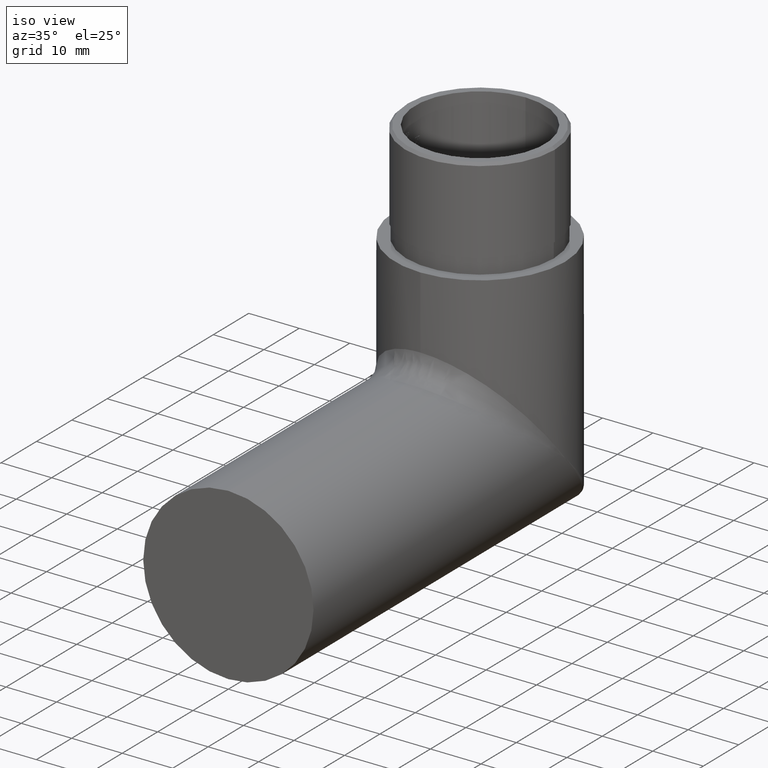
[diagram: clean part render]
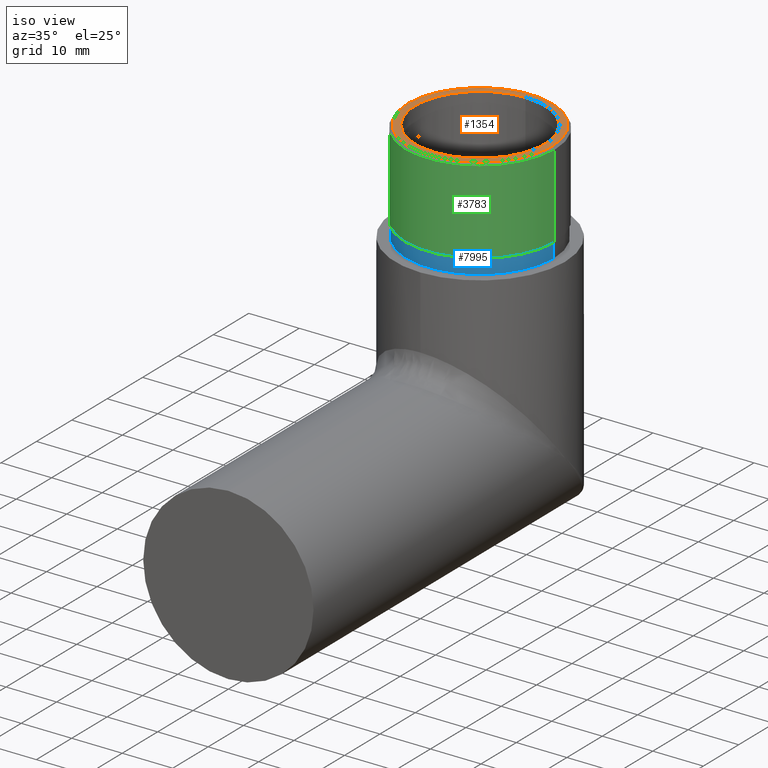
[diagram: same view with three faces highlighted in distinct colors, each labeled with its STEP entity id]
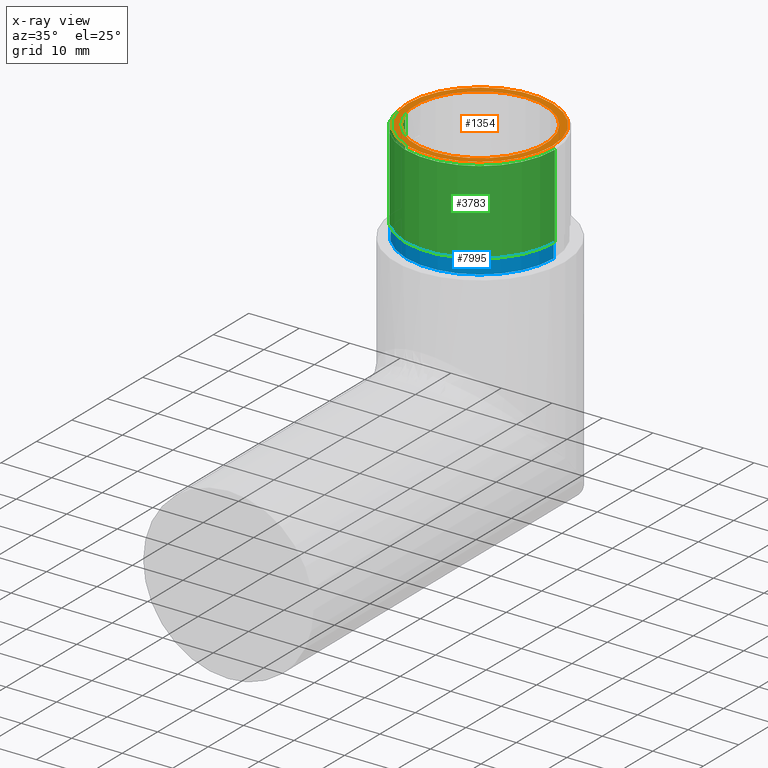
[diagram: x-ray of the same camera — body ghosted, the three highlighted faces saturated]
A machine part, iso view with three faces highlighted in distinct colors.
The next image is the same camera in x-ray (body ghosted, the three faces saturated) — at least one of them is partly hidden behind the body in this view.
Their STEP definitions:

[orange] entity #1354 — the highlighted planar face has unit normal (0, 0, 1).
#165 = CIRCLE ( 'NONE', #3776, 14.30000000000000782 ) ;
#261 = DIRECTION ( 'NONE',  ( 0.000000000000000000, 0.000000000000000000, 1.000000000000000000 ) ) ;
#809 = CARTESIAN_POINT ( 'NONE',  ( 0.000000000000000000, 71.15000000000000568, 55.15000000000002700 ) ) ;
#962 = AXIS2_PLACEMENT_3D ( 'NONE', #809, #6877, #6670 ) ;
#1278 = CARTESIAN_POINT ( 'NONE',  ( 0.000000000000000000, 58.30000000000001137, 55.15000000000002700 ) ) ;
#1354 = ADVANCED_FACE ( 'NONE', ( #12786, #5587 ), #4579, .T. ) ;
#1724 = EDGE_LOOP ( 'NONE', ( #2799, #12719 ) ) ;
#2519 = DIRECTION ( 'NONE',  ( 0.000000000000000000, 0.000000000000000000, 1.000000000000000000 ) ) ;
#2710 = CARTESIAN_POINT ( 'NONE',  ( 1.573671136904349651E-15, 83.99999999999998579, 55.15000000000002700 ) ) ;
#2799 = ORIENTED_EDGE ( 'NONE', *, *, #7015, .T. ) ;
#3461 = EDGE_CURVE ( 'NONE', #6031, #10194, #9470, .T. ) ;
#3776 = AXIS2_PLACEMENT_3D ( 'NONE', #15179, #7941, #10262 ) ;
#4579 = PLANE ( 'NONE',  #14190 ) ;
#4726 = CARTESIAN_POINT ( 'NONE',  ( 14.30000000000000782, 71.15000000000000568, 55.15000000000002700 ) ) ;
#5053 = ORIENTED_EDGE ( 'NONE', *, *, #5716, .F. ) ;
#5587 = FACE_BOUND ( 'NONE', #7394, .T. ) ;
#5716 = EDGE_CURVE ( 'NONE', #10194, #6031, #15503, .T. ) ;
#6031 = VERTEX_POINT ( 'NONE', #1278 ) ;
#6338 = CARTESIAN_POINT ( 'NONE',  ( 0.000000000000000000, 71.15000000000000568, 55.15000000000002700 ) ) ;
#6670 = DIRECTION ( 'NONE',  ( 1.000000000000000000, 0.000000000000000000, 0.000000000000000000 ) ) ;
#6776 = CARTESIAN_POINT ( 'NONE',  ( -14.30000000000000782, 71.15000000000000568, 55.15000000000002700 ) ) ;
#6877 = DIRECTION ( 'NONE',  ( 0.000000000000000000, 0.000000000000000000, 1.000000000000000000 ) ) ;
#7015 = EDGE_CURVE ( 'NONE', #8448, #11737, #165, .T. ) ;
#7394 = EDGE_LOOP ( 'NONE', ( #12079, #5053 ) ) ;
#7941 = DIRECTION ( 'NONE',  ( 0.000000000000000000, 0.000000000000000000, 1.000000000000000000 ) ) ;
#8448 = VERTEX_POINT ( 'NONE', #6776 ) ;
#8627 = AXIS2_PLACEMENT_3D ( 'NONE', #9750, #2519, #11005 ) ;
#9470 = CIRCLE ( 'NONE', #8627, 12.84999999999999254 ) ;
#9750 = CARTESIAN_POINT ( 'NONE',  ( 0.000000000000000000, 71.15000000000000568, 55.15000000000002700 ) ) ;
#10194 = VERTEX_POINT ( 'NONE', #2710 ) ;
#10262 = DIRECTION ( 'NONE',  ( 1.000000000000000000, 0.000000000000000000, 0.000000000000000000 ) ) ;
#10585 = DIRECTION ( 'NONE',  ( 0.000000000000000000, 0.000000000000000000, 1.000000000000000000 ) ) ;
#11005 = DIRECTION ( 'NONE',  ( 1.000000000000000000, 0.000000000000000000, 0.000000000000000000 ) ) ;
#11303 = CIRCLE ( 'NONE', #14045, 14.30000000000000782 ) ;
#11371 = EDGE_CURVE ( 'NONE', #11737, #8448, #11303, .T. ) ;
#11737 = VERTEX_POINT ( 'NONE', #4726 ) ;
#11855 = DIRECTION ( 'NONE',  ( 1.000000000000000000, 0.000000000000000000, -0.000000000000000000 ) ) ;
#12079 = ORIENTED_EDGE ( 'NONE', *, *, #3461, .F. ) ;
#12719 = ORIENTED_EDGE ( 'NONE', *, *, #11371, .T. ) ;
#12786 = FACE_OUTER_BOUND ( 'NONE', #1724, .T. ) ;
#13447 = DIRECTION ( 'NONE',  ( 1.000000000000000000, 0.000000000000000000, 0.000000000000000000 ) ) ;
#14045 = AXIS2_PLACEMENT_3D ( 'NONE', #6338, #261, #13447 ) ;
#14162 = CARTESIAN_POINT ( 'NONE',  ( 0.000000000000000000, 71.15000000000000568, 55.15000000000002700 ) ) ;
#14190 = AXIS2_PLACEMENT_3D ( 'NONE', #14162, #10585, #11855 ) ;
#15179 = CARTESIAN_POINT ( 'NONE',  ( 0.000000000000000000, 71.15000000000000568, 55.15000000000002700 ) ) ;
#15503 = CIRCLE ( 'NONE', #962, 12.84999999999999254 ) ;

[blue] entity #7995 — the highlighted cylindrical surface (partial cylindrical patch) has radius 14.6 mm, axis along (-0, -0, -1).
#121 = CARTESIAN_POINT ( 'NONE',  ( -14.59999999999999964, 71.15000000000000568, 38.15000000000002700 ) ) ;
#514 = DIRECTION ( 'NONE',  ( -0.000000000000000000, -0.000000000000000000, -1.000000000000000000 ) ) ;
#1111 = VERTEX_POINT ( 'NONE', #121 ) ;
#1693 = ORIENTED_EDGE ( 'NONE', *, *, #5771, .F. ) ;
#1961 = DIRECTION ( 'NONE',  ( 0.000000000000000000, 0.000000000000000000, 1.000000000000000000 ) ) ;
#2077 = VECTOR ( 'NONE', #2165, 1000.000000000000000 ) ;
#2091 = DIRECTION ( 'NONE',  ( -0.000000000000000000, -0.000000000000000000, -1.000000000000000000 ) ) ;
#2165 = DIRECTION ( 'NONE',  ( -0.000000000000000000, -0.000000000000000000, -1.000000000000000000 ) ) ;
#3735 = CIRCLE ( 'NONE', #4366, 14.59999999999999964 ) ;
#4129 = VERTEX_POINT ( 'NONE', #6672 ) ;
#4283 = DIRECTION ( 'NONE',  ( -1.000000000000000000, 0.000000000000000000, 0.000000000000000000 ) ) ;
#4366 = AXIS2_PLACEMENT_3D ( 'NONE', #11947, #13143, #8418 ) ;
#4639 = CIRCLE ( 'NONE', #7276, 14.59999999999999964 ) ;
#4874 = ORIENTED_EDGE ( 'NONE', *, *, #13393, .T. ) ;
#5086 = LINE ( 'NONE', #8157, #2077 ) ;
#5677 = ORIENTED_EDGE ( 'NONE', *, *, #6847, .F. ) ;
#5771 = EDGE_CURVE ( 'NONE', #13353, #4129, #5086, .T. ) ;
#6672 = CARTESIAN_POINT ( 'NONE',  ( 14.59999999999999964, 71.15000000000000568, 35.15000000000001990 ) ) ;
#6705 = VECTOR ( 'NONE', #2091, 1000.000000000000000 ) ;
#6847 = EDGE_CURVE ( 'NONE', #1111, #13353, #3735, .T. ) ;
#7276 = AXIS2_PLACEMENT_3D ( 'NONE', #10264, #1961, #11440 ) ;
#7651 = LINE ( 'NONE', #13976, #6705 ) ;
#7903 = FACE_OUTER_BOUND ( 'NONE', #10549, .T. ) ;
#7924 = VERTEX_POINT ( 'NONE', #9915 ) ;
#7995 = ADVANCED_FACE ( 'NONE', ( #7903 ), #8863, .T. ) ;
#8157 = CARTESIAN_POINT ( 'NONE',  ( 14.59999999999999964, 71.15000000000000568, 38.15000000000002700 ) ) ;
#8418 = DIRECTION ( 'NONE',  ( 1.000000000000000000, 0.000000000000000000, 0.000000000000000000 ) ) ;
#8863 = CYLINDRICAL_SURFACE ( 'NONE', #10488, 14.59999999999999964 ) ;
#9196 = CARTESIAN_POINT ( 'NONE',  ( 14.59999999999999964, 71.15000000000000568, 38.15000000000002700 ) ) ;
#9233 = ORIENTED_EDGE ( 'NONE', *, *, #11170, .T. ) ;
#9915 = CARTESIAN_POINT ( 'NONE',  ( -14.59999999999999964, 71.15000000000000568, 35.15000000000001990 ) ) ;
#10264 = CARTESIAN_POINT ( 'NONE',  ( 0.000000000000000000, 71.15000000000000568, 35.15000000000001990 ) ) ;
#10488 = AXIS2_PLACEMENT_3D ( 'NONE', #15199, #514, #4283 ) ;
#10549 = EDGE_LOOP ( 'NONE', ( #1693, #5677, #4874, #9233 ) ) ;
#11170 = EDGE_CURVE ( 'NONE', #7924, #4129, #4639, .T. ) ;
#11440 = DIRECTION ( 'NONE',  ( 1.000000000000000000, 0.000000000000000000, 0.000000000000000000 ) ) ;
#11947 = CARTESIAN_POINT ( 'NONE',  ( 0.000000000000000000, 71.15000000000000568, 38.15000000000002700 ) ) ;
#13143 = DIRECTION ( 'NONE',  ( 0.000000000000000000, 0.000000000000000000, 1.000000000000000000 ) ) ;
#13353 = VERTEX_POINT ( 'NONE', #9196 ) ;
#13393 = EDGE_CURVE ( 'NONE', #1111, #7924, #7651, .T. ) ;
#13976 = CARTESIAN_POINT ( 'NONE',  ( -14.59999999999999964, 71.15000000000000568, 38.15000000000002700 ) ) ;
#15199 = CARTESIAN_POINT ( 'NONE',  ( 0.000000000000000000, 71.15000000000000568, 38.15000000000002700 ) ) ;

[green] entity #3783 — the highlighted cylindrical surface (partial cylindrical patch) has radius 14.8 mm, axis along (-0, -0, -1).
#588 = VECTOR ( 'NONE', #11415, 1000.000000000000000 ) ;
#682 = DIRECTION ( 'NONE',  ( -0.000000000000000000, -0.000000000000000000, -1.000000000000000000 ) ) ;
#1179 = FACE_OUTER_BOUND ( 'NONE', #2238, .T. ) ;
#1250 = EDGE_CURVE ( 'NONE', #7495, #7671, #8424, .T. ) ;
#1379 = CARTESIAN_POINT ( 'NONE',  ( 0.000000000000000000, 71.15000000000000568, 38.15000000000002700 ) ) ;
#1756 = CARTESIAN_POINT ( 'NONE',  ( -14.80000000000000071, 71.15000000000000568, 55.15000000000002700 ) ) ;
#1870 = CARTESIAN_POINT ( 'NONE',  ( -14.80000000000000071, 71.15000000000000568, 54.65000000000004832 ) ) ;
#2238 = EDGE_LOOP ( 'NONE', ( #8839, #11375, #10739, #4275 ) ) ;
#2612 = CARTESIAN_POINT ( 'NONE',  ( 0.000000000000000000, 71.15000000000000568, 54.65000000000004832 ) ) ;
#3227 = CYLINDRICAL_SURFACE ( 'NONE', #9118, 14.80000000000000071 ) ;
#3674 = EDGE_CURVE ( 'NONE', #14880, #12295, #7399, .T. ) ;
#3683 = DIRECTION ( 'NONE',  ( 0.000000000000000000, 0.000000000000000000, 1.000000000000000000 ) ) ;
#3783 = ADVANCED_FACE ( 'NONE', ( #1179 ), #3227, .T. ) ;
#3810 = DIRECTION ( 'NONE',  ( 1.000000000000000000, 0.000000000000000000, 0.000000000000000000 ) ) ;
#4125 = CARTESIAN_POINT ( 'NONE',  ( 14.80000000000000071, 71.15000000000000568, 38.15000000000002700 ) ) ;
#4275 = ORIENTED_EDGE ( 'NONE', *, *, #4544, .T. ) ;
#4544 = EDGE_CURVE ( 'NONE', #7671, #12295, #9651, .T. ) ;
#4653 = DIRECTION ( 'NONE',  ( -1.000000000000000000, 0.000000000000000000, 0.000000000000000000 ) ) ;
#4799 = DIRECTION ( 'NONE',  ( 1.000000000000000000, 0.000000000000000000, 0.000000000000000000 ) ) ;
#5098 = DIRECTION ( 'NONE',  ( 0.000000000000000000, 0.000000000000000000, -1.000000000000000000 ) ) ;
#5786 = DIRECTION ( 'NONE',  ( -0.000000000000000000, -0.000000000000000000, -1.000000000000000000 ) ) ;
#6004 = CARTESIAN_POINT ( 'NONE',  ( 14.80000000000000071, 71.15000000000000568, 54.65000000000004832 ) ) ;
#6850 = CARTESIAN_POINT ( 'NONE',  ( 14.80000000000000071, 71.15000000000000568, 55.15000000000002700 ) ) ;
#7294 = VECTOR ( 'NONE', #682, 1000.000000000000000 ) ;
#7399 = LINE ( 'NONE', #6850, #588 ) ;
#7495 = VERTEX_POINT ( 'NONE', #1870 ) ;
#7671 = VERTEX_POINT ( 'NONE', #8969 ) ;
#8258 = EDGE_CURVE ( 'NONE', #14880, #7495, #9411, .T. ) ;
#8424 = LINE ( 'NONE', #1756, #7294 ) ;
#8646 = AXIS2_PLACEMENT_3D ( 'NONE', #2612, #5098, #3810 ) ;
#8839 = ORIENTED_EDGE ( 'NONE', *, *, #3674, .F. ) ;
#8969 = CARTESIAN_POINT ( 'NONE',  ( -14.80000000000000071, 71.15000000000000568, 38.15000000000002700 ) ) ;
#9118 = AXIS2_PLACEMENT_3D ( 'NONE', #14194, #5786, #4653 ) ;
#9411 = CIRCLE ( 'NONE', #8646, 14.80000000000000071 ) ;
#9651 = CIRCLE ( 'NONE', #15550, 14.80000000000000071 ) ;
#10739 = ORIENTED_EDGE ( 'NONE', *, *, #1250, .T. ) ;
#11375 = ORIENTED_EDGE ( 'NONE', *, *, #8258, .T. ) ;
#11415 = DIRECTION ( 'NONE',  ( -0.000000000000000000, -0.000000000000000000, -1.000000000000000000 ) ) ;
#12295 = VERTEX_POINT ( 'NONE', #4125 ) ;
#14194 = CARTESIAN_POINT ( 'NONE',  ( 0.000000000000000000, 71.15000000000000568, 55.15000000000002700 ) ) ;
#14880 = VERTEX_POINT ( 'NONE', #6004 ) ;
#15550 = AXIS2_PLACEMENT_3D ( 'NONE', #1379, #3683, #4799 ) ;